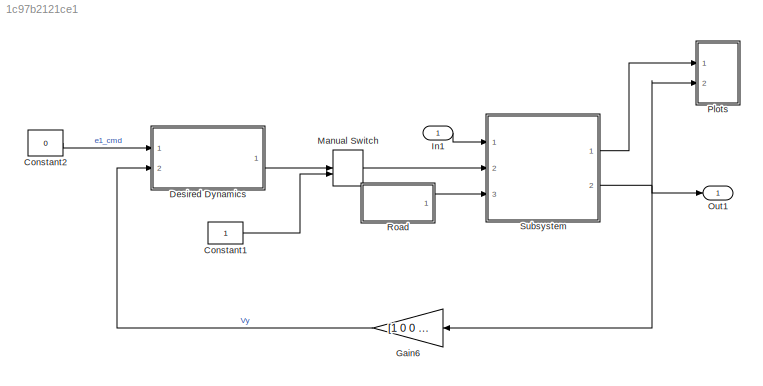
MODEL slx_1c97b2121ce1
KIND model
CONFIG AbsTol = auto
CONFIG EnableMultiTasking = off
CONFIG FixedStep = 0.001
CONFIG MaxStep = auto
CONFIG MinStep = auto
CONFIG RelTol = 1e-3
CONFIG SampleTimeConstraint = Unconstrained
CONFIG Solver = ode3
CONFIG SolverName = ode3
CONFIG StartTime = 0.0
CONFIG StopTime = 25
BLOCK [Constant] Constant1
BLOCK [Constant] Constant2
  Value = 0
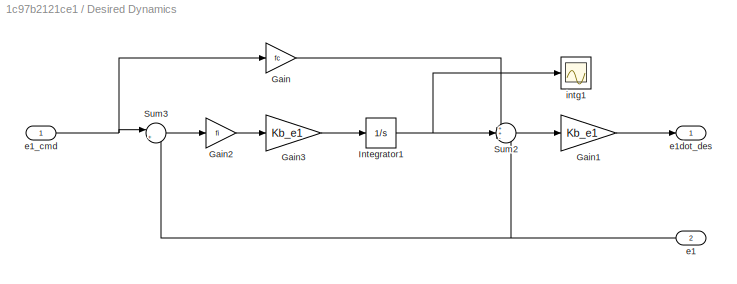
BLOCK [SubSystem] Desired Dynamics
  Ports = [2, 1]
  RequestExecContextInheritance = off
BLOCK [Gain] Desired Dynamics/Gain
  Gain = fc
  OutDataTypeStr = Inherit: Inherit via internal rule
  ParamDataTypeStr = Inherit: Inherit via internal rule
  SaturateOnIntegerOverflow = off
BLOCK [Gain] Desired Dynamics/Gain1
  Gain = Kb_e1
  OutDataTypeStr = Inherit: Inherit via internal rule
  ParamDataTypeStr = Inherit: Inherit via internal rule
  SaturateOnIntegerOverflow = off
BLOCK [Gain] Desired Dynamics/Gain2
  Gain = fi
  OutDataTypeStr = Inherit: Inherit via internal rule
  ParamDataTypeStr = Inherit: Inherit via internal rule
  SaturateOnIntegerOverflow = off
BLOCK [Gain] Desired Dynamics/Gain3
  Gain = Kb_e1
  OutDataTypeStr = Inherit: Inherit via internal rule
  ParamDataTypeStr = Inherit: Inherit via internal rule
  SaturateOnIntegerOverflow = off
BLOCK [Integrator] Desired Dynamics/Integrator1
  Ports = [1, 1]
BLOCK [Sum] Desired Dynamics/Sum2
  IconShape = round
  InputSameDT = off
  Inputs = ++-
  OutDataTypeStr = Inherit: Inherit via internal rule
  Ports = [3, 1]
  SaturateOnIntegerOverflow = off
BLOCK [Sum] Desired Dynamics/Sum3
  IconShape = round
  InputSameDT = off
  Inputs = |+-
  OutDataTypeStr = Inherit: Inherit via internal rule
  Ports = [2, 1]
  SaturateOnIntegerOverflow = off
BLOCK [Inport] Desired Dynamics/e1
  IconDisplay = Port number
  Port = 2
BLOCK [Inport] Desired Dynamics/e1_cmd
  IconDisplay = Port number
BLOCK [Outport] Desired Dynamics/e1dot_des
  IconDisplay = Port number
BLOCK [Scope] Desired Dynamics/intg1
  Floating = off
  NumInputPorts = 1
  Ports = [1]
  ScopeSpecificationString = Simulink.scopes.TimeScopeBlockCfg('CurrentConfiguration', extmgr.ConfigurationSet(extmgr.Configuration('Core','General UI',true),extmgr.Configuration('Core','Source UI',true),extmgr.Configuration('Sources','WiredSimulink',true,'DataLoggingVariableName','ScopeData2'),extmgr.Configuration('Visuals','Time Domain',true,'SerializedDisplays',{struct('MinYLimReal','-0.15092','MaxYLimReal','0.01677','YLab...<+1419ch>
BLOCK [Gain] Gain6
  Gain = [1 0 0 0]
  Multiplication = Matrix(K*u)
  OutDataTypeStr = Inherit: Inherit via internal rule
  ParamDataTypeStr = Inherit: Inherit via internal rule
  SaturateOnIntegerOverflow = off
BLOCK [Inport] In1
  IconDisplay = Port number
BLOCK [ManualSwitch] Manual Switch
BLOCK [Outport] Out1
  IconDisplay = Port number
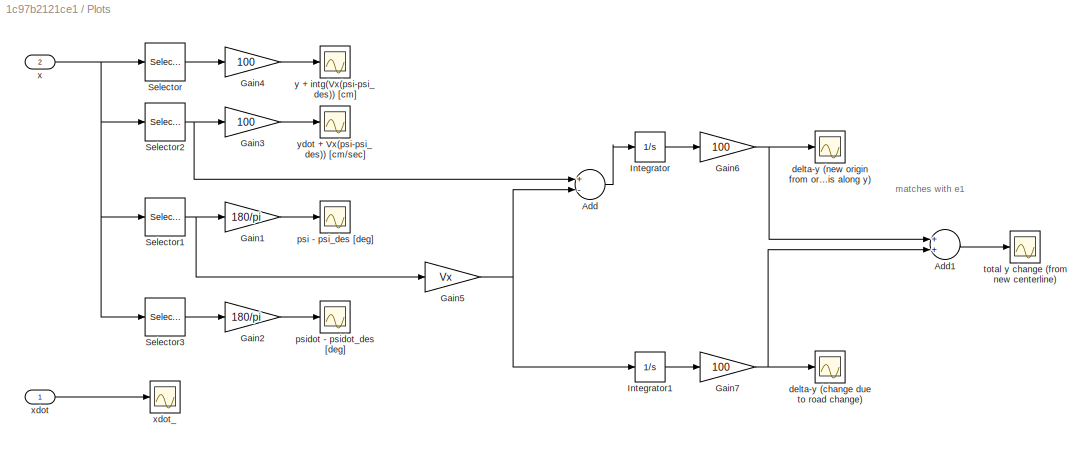
BLOCK [SubSystem] Plots
  Ports = [2]
  RequestExecContextInheritance = off
BLOCK [Sum] Plots/Add
  InputSameDT = off
  Inputs = +-
  OutDataTypeStr = Inherit: Inherit via internal rule
  Ports = [2, 1]
  SaturateOnIntegerOverflow = off
BLOCK [Sum] Plots/Add1
  InputSameDT = off
  OutDataTypeStr = Inherit: Inherit via internal rule
  Ports = [2, 1]
  SaturateOnIntegerOverflow = off
BLOCK [Gain] Plots/Gain1
  Gain = 180/pi
  OutDataTypeStr = Inherit: Inherit via internal rule
  ParamDataTypeStr = Inherit: Inherit via internal rule
  SaturateOnIntegerOverflow = off
BLOCK [Gain] Plots/Gain2
  Gain = 180/pi
  OutDataTypeStr = Inherit: Inherit via internal rule
  ParamDataTypeStr = Inherit: Inherit via internal rule
  SaturateOnIntegerOverflow = off
BLOCK [Gain] Plots/Gain3
  Gain = 100
  OutDataTypeStr = Inherit: Inherit via internal rule
  ParamDataTypeStr = Inherit: Inherit via internal rule
  SaturateOnIntegerOverflow = off
BLOCK [Gain] Plots/Gain4
  Gain = 100
  OutDataTypeStr = Inherit: Inherit via internal rule
  ParamDataTypeStr = Inherit: Inherit via internal rule
  SaturateOnIntegerOverflow = off
BLOCK [Gain] Plots/Gain5
  Gain = Vx
  OutDataTypeStr = Inherit: Inherit via internal rule
  ParamDataTypeStr = Inherit: Inherit via internal rule
  SaturateOnIntegerOverflow = off
BLOCK [Gain] Plots/Gain6
  Gain = 100
  OutDataTypeStr = Inherit: Inherit via internal rule
  ParamDataTypeStr = Inherit: Inherit via internal rule
  SaturateOnIntegerOverflow = off
BLOCK [Gain] Plots/Gain7
  Gain = 100
  OutDataTypeStr = Inherit: Inherit via internal rule
  ParamDataTypeStr = Inherit: Inherit via internal rule
  SaturateOnIntegerOverflow = off
BLOCK [Integrator] Plots/Integrator
  Ports = [1, 1]
BLOCK [Integrator] Plots/Integrator1
  Ports = [1, 1]
BLOCK [Selector] Plots/Selector
  IndexOptions = Index vector (dialog)
  Indices = 1
  InputPortWidth = 4
  OutputSizes = 1
  Ports = [1, 1]
BLOCK [Selector] Plots/Selector1
  IndexOptions = Index vector (dialog)
  Indices = 3
  InputPortWidth = 4
  OutputSizes = 1
  Ports = [1, 1]
BLOCK [Selector] Plots/Selector2
  IndexOptions = Index vector (dialog)
  Indices = 2
  InputPortWidth = 4
  OutputSizes = 1
  Ports = [1, 1]
BLOCK [Selector] Plots/Selector3
  IndexOptions = Index vector (dialog)
  Indices = 4
  InputPortWidth = 4
  OutputSizes = 1
  Ports = [1, 1]
BLOCK [Scope] Plots/delta-y (change due to road change)
  Floating = off
  NumInputPorts = 1
  Ports = [1]
  ScopeSpecificationString = Simulink.scopes.TimeScopeBlockCfg('CurrentConfiguration', extmgr.ConfigurationSet(extmgr.Configuration('Core','General UI',true),extmgr.Configuration('Core','Source UI',true),extmgr.Configuration('Sources','WiredSimulink',true,'DataLoggingVariableName','ScopeData8'),extmgr.Configuration('Visuals','Time Domain',true,'SerializedDisplays',{struct('MinYLimReal','-11.47664','MaxYLimReal','73.01649','YL...<+1444ch>
BLOCK [Scope] Plots/delta-y (new origin from original axis along y)
  Floating = off
  NumInputPorts = 1
  Ports = [1]
  ScopeSpecificationString = Simulink.scopes.TimeScopeBlockCfg('CurrentConfiguration', extmgr.ConfigurationSet(extmgr.Configuration('Core','General UI',true),extmgr.Configuration('Core','Source UI',true),extmgr.Configuration('Sources','WiredSimulink',true,'DataLoggingVariableName','ScopeData7'),extmgr.Configuration('Visuals','Time Domain',true,'SerializedDisplays',{struct('MinYLimReal','-70.58261','MaxYLimReal','11.09408','YL...<+1444ch>
BLOCK [Scope] Plots/psi - psi_des [deg]
  Floating = off
  NumInputPorts = 1
  Ports = [1]
  ScopeSpecificationString = Simulink.scopes.TimeScopeBlockCfg('CurrentConfiguration', extmgr.ConfigurationSet(extmgr.Configuration('Core','General UI',true),extmgr.Configuration('Core','Source UI',true),extmgr.Configuration('Sources','WiredSimulink',true,'DataLoggingVariableName','ScopeData1'),extmgr.Configuration('Visuals','Time Domain',true,'SerializedDisplays',{struct('MinYLimReal','-0.35907','MaxYLimReal','0.75029','YLab...<+1439ch>
BLOCK [Scope] Plots/psidot - psidot_des [deg]
  Floating = off
  NumInputPorts = 1
  Ports = [1]
  ScopeSpecificationString = Simulink.scopes.TimeScopeBlockCfg('CurrentConfiguration', extmgr.ConfigurationSet(extmgr.Configuration('Core','General UI',true),extmgr.Configuration('Core','Source UI',true),extmgr.Configuration('Sources','WiredSimulink',true,'DataLoggingVariableName','ScopeData6'),extmgr.Configuration('Visuals','Time Domain',true,'SerializedDisplays',{struct('MinYLimReal','-2.60728','MaxYLimReal','3.85906','YLab...<+1439ch>
BLOCK [Scope] Plots/total y change (from new centerline)
  Floating = off
  NumInputPorts = 1
  Ports = [1]
  ScopeSpecificationString = Simulink.scopes.TimeScopeBlockCfg('CurrentConfiguration', extmgr.ConfigurationSet(extmgr.Configuration('Core','General UI',true),extmgr.Configuration('Core','Source UI',true),extmgr.Configuration('Sources','WiredSimulink',true,'DataLoggingVariableName','ScopeData9'),extmgr.Configuration('Visuals','Time Domain',true,'SerializedDisplays',{struct('MinYLimReal','-15.47036','MaxYLimReal','13.48539','YL...<+1444ch>
BLOCK [Inport] Plots/x
  IconDisplay = Port number
  Port = 2
BLOCK [Inport] Plots/xdot
  IconDisplay = Port number
BLOCK [Scope] Plots/xdot_
  Floating = off
  NumInputPorts = 1
  Ports = [1]
  ScopeSpecificationString = Simulink.scopes.TimeScopeBlockCfg('CurrentConfiguration', extmgr.ConfigurationSet(extmgr.Configuration('Core','General UI',true),extmgr.Configuration('Core','Source UI',true),extmgr.Configuration('Sources','WiredSimulink',true,'DataLoggingVariableName','ScopeData3'),extmgr.Configuration('Visuals','Time Domain',true,'SerializedDisplays',{struct('MinYLimReal','-4.0849','MaxYLimReal','11.31531','YLab...<+1443ch>
BLOCK [Scope] Plots/y + intg(Vx(psi-psi_des)) [cm]
  Floating = off
  NumInputPorts = 1
  Ports = [1]
  ScopeSpecificationString = Simulink.scopes.TimeScopeBlockCfg('CurrentConfiguration', extmgr.ConfigurationSet(extmgr.Configuration('Core','General UI',true),extmgr.Configuration('Core','Source UI',true),extmgr.Configuration('Sources','WiredSimulink',true,'DataLoggingVariableName','ScopeData2'),extmgr.Configuration('Visuals','Time Domain',true,'SerializedDisplays',{struct('MinYLimReal','-15.47036','MaxYLimReal','13.48539','YL...<+1445ch>
BLOCK [Scope] Plots/ydot + Vx(psi-psi_des)) [cm//sec]
  Floating = off
  NumInputPorts = 1
  Ports = [1]
  ScopeSpecificationString = Simulink.scopes.TimeScopeBlockCfg('CurrentConfiguration', extmgr.ConfigurationSet(extmgr.Configuration('Core','General UI',true),extmgr.Configuration('Core','Source UI',true),extmgr.Configuration('Sources','WiredSimulink',true,'DataLoggingVariableName','ScopeData5'),extmgr.Configuration('Visuals','Time Domain',true,'SerializedDisplays',{struct('MinYLimReal','-28.63308','MaxYLimReal','31.30667','YL...<+1419ch>
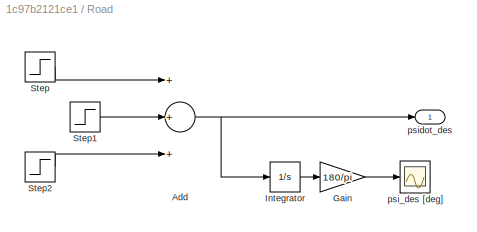
BLOCK [SubSystem] Road
  Ports = [0, 1]
  RequestExecContextInheritance = off
BLOCK [Sum] Road/Add
  InputSameDT = off
  Inputs = +++
  OutDataTypeStr = Inherit: Inherit via internal rule
  Ports = [3, 1]
  SaturateOnIntegerOverflow = off
BLOCK [Gain] Road/Gain
  Gain = 180/pi
  OutDataTypeStr = Inherit: Inherit via internal rule
  ParamDataTypeStr = Inherit: Inherit via internal rule
  SaturateOnIntegerOverflow = off
BLOCK [Integrator] Road/Integrator
  Ports = [1, 1]
BLOCK [Step] Road/Step
  After = 5*pi/180
  SampleTime = 0
  Time = 10
BLOCK [Step] Road/Step1
  After = -5*pi/180
  SampleTime = 0
  Time = 13
BLOCK [Step] Road/Step2
  After = 5*pi/180*0
  SampleTime = 0
  Time = 16
BLOCK [Scope] Road/psi_des [deg]
  Floating = off
  NumInputPorts = 1
  Ports = [1]
  ScopeSpecificationString = Simulink.scopes.TimeScopeBlockCfg('CurrentConfiguration', extmgr.ConfigurationSet(extmgr.Configuration('Core','General UI',true),extmgr.Configuration('Core','Source UI',true),extmgr.Configuration('Sources','WiredSimulink',true,'DataLoggingVariableName','ScopeData4'),extmgr.Configuration('Visuals','Time Domain',true,'SerializedDisplays',{struct('MinYLimReal','-1.875','MaxYLimReal','16.875','YLabelR...<+1411ch>
BLOCK [Outport] Road/psidot_des
  IconDisplay = Port number
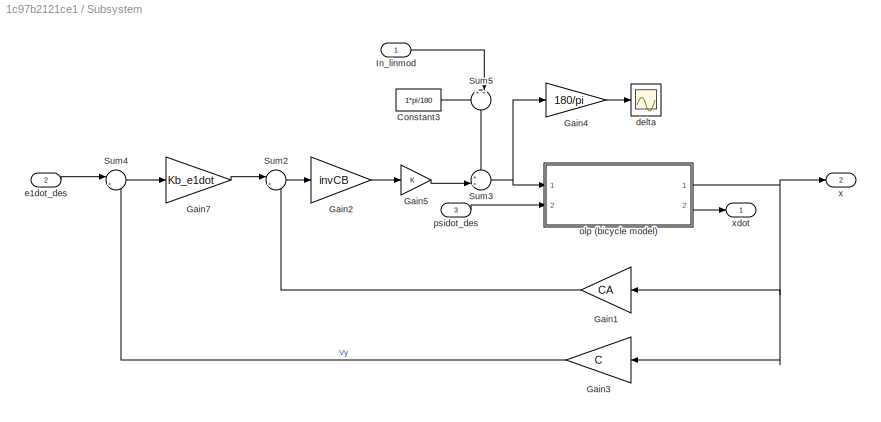
BLOCK [SubSystem] Subsystem
  Ports = [3, 2]
  RequestExecContextInheritance = off
BLOCK [Constant] Subsystem/Constant3
  Value = 1*pi/180
BLOCK [Gain] Subsystem/Gain1
  Gain = CA
  Multiplication = Matrix(K*u)
  OutDataTypeStr = Inherit: Inherit via internal rule
  ParamDataTypeStr = Inherit: Inherit via internal rule
  SaturateOnIntegerOverflow = off
BLOCK [Gain] Subsystem/Gain2
  Gain = invCB
  Multiplication = Matrix(K*u)
  OutDataTypeStr = Inherit: Inherit via internal rule
  ParamDataTypeStr = Inherit: Inherit via internal rule
  SaturateOnIntegerOverflow = off
BLOCK [Gain] Subsystem/Gain3
  Gain = C
  Multiplication = Matrix(K*u)
  OutDataTypeStr = Inherit: Inherit via internal rule
  ParamDataTypeStr = Inherit: Inherit via internal rule
  SaturateOnIntegerOverflow = off
BLOCK [Gain] Subsystem/Gain4
  Gain = 180/pi
  Multiplication = Matrix(K*u)
  OutDataTypeStr = Inherit: Inherit via internal rule
  ParamDataTypeStr = Inherit: Inherit via internal rule
  SaturateOnIntegerOverflow = off
BLOCK [Gain] Subsystem/Gain5
  OutDataTypeStr = Inherit: Inherit via internal rule
  ParamDataTypeStr = Inherit: Inherit via internal rule
  SaturateOnIntegerOverflow = off
BLOCK [Gain] Subsystem/Gain7
  Gain = Kb_e1dot
  OutDataTypeStr = Inherit: Inherit via internal rule
  ParamDataTypeStr = Inherit: Inherit via internal rule
  SaturateOnIntegerOverflow = off
BLOCK [Inport] Subsystem/In_linmod
  IconDisplay = Port number
BLOCK [Sum] Subsystem/Sum2
  IconShape = round
  InputSameDT = off
  Inputs = |+-
  OutDataTypeStr = Inherit: Inherit via internal rule
  Ports = [2, 1]
  SaturateOnIntegerOverflow = off
BLOCK [Sum] Subsystem/Sum3
  IconShape = round
  InputSameDT = off
  Inputs = ++|
  OutDataTypeStr = Inherit: Inherit via internal rule
  Ports = [2, 1]
  SaturateOnIntegerOverflow = off
BLOCK [Sum] Subsystem/Sum4
  IconShape = round
  InputSameDT = off
  Inputs = |+-
  OutDataTypeStr = Inherit: Inherit via internal rule
  Ports = [2, 1]
  SaturateOnIntegerOverflow = off
BLOCK [Sum] Subsystem/Sum5
  IconShape = round
  InputSameDT = off
  Inputs = ++|
  OutDataTypeStr = Inherit: Inherit via internal rule
  Ports = [2, 1]
  SaturateOnIntegerOverflow = off
BLOCK [Scope] Subsystem/delta
  Floating = off
  NumInputPorts = 1
  Ports = [1]
  ScopeSpecificationString = Simulink.scopes.TimeScopeBlockCfg('CurrentConfiguration', extmgr.ConfigurationSet(extmgr.Configuration('Core','General UI',true),extmgr.Configuration('Core','Source UI',true),extmgr.Configuration('Sources','WiredSimulink',true,'DataLoggingVariableName','ScopeData3'),extmgr.Configuration('Visuals','Time Domain',true,'SerializedDisplays',{struct('MinYLimReal','-0.30382','MaxYLimReal','2.76099','YLab...<+1393ch>
BLOCK [Inport] Subsystem/e1dot_des
  IconDisplay = Port number
  Port = 2
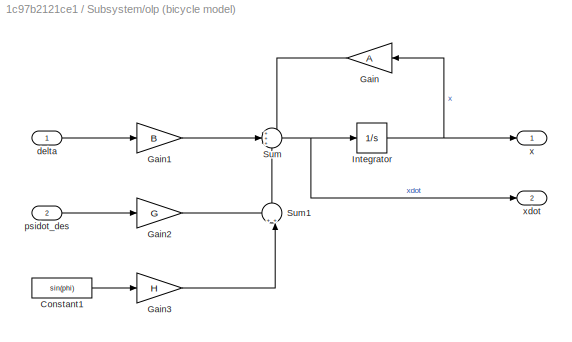
BLOCK [SubSystem] Subsystem/olp (bicycle model)
  Ports = [2, 2]
  RequestExecContextInheritance = off
BLOCK [Constant] Subsystem/olp (bicycle model)/Constant1
  Value = sin(phi)
BLOCK [Gain] Subsystem/olp (bicycle model)/Gain
  Gain = A
  Multiplication = Matrix(K*u)
  OutDataTypeStr = Inherit: Inherit via internal rule
  ParamDataTypeStr = Inherit: Inherit via internal rule
  SaturateOnIntegerOverflow = off
BLOCK [Gain] Subsystem/olp (bicycle model)/Gain1
  Gain = B
  Multiplication = Matrix(K*u)
  OutDataTypeStr = Inherit: Inherit via internal rule
  ParamDataTypeStr = Inherit: Inherit via internal rule
  SaturateOnIntegerOverflow = off
BLOCK [Gain] Subsystem/olp (bicycle model)/Gain2
  Gain = G
  Multiplication = Matrix(K*u)
  OutDataTypeStr = Inherit: Inherit via internal rule
  ParamDataTypeStr = Inherit: Inherit via internal rule
  SaturateOnIntegerOverflow = off
BLOCK [Gain] Subsystem/olp (bicycle model)/Gain3
  Gain = H
  Multiplication = Matrix(K*u)
  OutDataTypeStr = Inherit: Inherit via internal rule
  ParamDataTypeStr = Inherit: Inherit via internal rule
  SaturateOnIntegerOverflow = off
BLOCK [Integrator] Subsystem/olp (bicycle model)/Integrator
  InitialCondition = x0
  Ports = [1, 1]
BLOCK [Sum] Subsystem/olp (bicycle model)/Sum
  IconShape = round
  InputSameDT = off
  Inputs = +++
  OutDataTypeStr = Inherit: Inherit via internal rule
  Ports = [3, 1]
  SaturateOnIntegerOverflow = off
BLOCK [Sum] Subsystem/olp (bicycle model)/Sum1
  IconShape = round
  InputSameDT = off
  Inputs = ++|
  OutDataTypeStr = Inherit: Inherit via internal rule
  Ports = [2, 1]
  SaturateOnIntegerOverflow = off
BLOCK [Inport] Subsystem/olp (bicycle model)/delta
  IconDisplay = Port number
BLOCK [Inport] Subsystem/olp (bicycle model)/psidot_des
  IconDisplay = Port number
  Port = 2
BLOCK [Outport] Subsystem/olp (bicycle model)/x
  IconDisplay = Port number
BLOCK [Outport] Subsystem/olp (bicycle model)/xdot
  IconDisplay = Port number
  Port = 2
BLOCK [Inport] Subsystem/psidot_des
  IconDisplay = Port number
  Port = 3
BLOCK [Outport] Subsystem/x
  IconDisplay = Port number
  Port = 2
BLOCK [Outport] Subsystem/xdot
  IconDisplay = Port number
ANNOTATION Plots: matches with e1
LINE Constant1:1 -> Manual Switch:2
LINE Constant2:1 -> Desired Dynamics:1
LINE Desired Dynamics/Gain1:1 -> Desired Dynamics/e1dot_des:1
LINE Desired Dynamics/Gain2:1 -> Desired Dynamics/Gain3:1
LINE Desired Dynamics/Gain3:1 -> Desired Dynamics/Integrator1:1
LINE Desired Dynamics/Gain:1 -> Desired Dynamics/Sum2:1
NET Desired Dynamics/Integrator1:1 -> Desired Dynamics/Sum2:2, Desired Dynamics/intg1:1
LINE Desired Dynamics/Sum2:1 -> Desired Dynamics/Gain1:1
LINE Desired Dynamics/Sum3:1 -> Desired Dynamics/Gain2:1
NET Desired Dynamics/e1:1 -> Desired Dynamics/Sum2:3, Desired Dynamics/Sum3:2
NET Desired Dynamics/e1_cmd:1 -> Desired Dynamics/Gain:1, Desired Dynamics/Sum3:1
LINE Desired Dynamics:1 -> Manual Switch:1
LINE Gain6:1 -> Desired Dynamics:2
LINE In1:1 -> Subsystem:1
LINE Manual Switch:1 -> Subsystem:2
LINE Plots/Add1:1 -> Plots/total y change (from new centerline):1
LINE Plots/Add:1 -> Plots/Integrator:1
LINE Plots/Gain1:1 -> Plots/psi - psi_des [deg]:1
LINE Plots/Gain2:1 -> Plots/psidot - psidot_des [deg]:1
LINE Plots/Gain3:1 -> Plots/ydot + Vx(psi-psi_des)) [cm//sec]:1
LINE Plots/Gain4:1 -> Plots/y + intg(Vx(psi-psi_des)) [cm]:1
NET Plots/Gain5:1 -> Plots/Add:2, Plots/Integrator1:1
NET Plots/Gain6:1 -> Plots/Add1:1, Plots/delta-y (new origin from original axis along y):1
NET Plots/Gain7:1 -> Plots/Add1:2, Plots/delta-y (change due to road change):1
LINE Plots/Integrator1:1 -> Plots/Gain7:1
LINE Plots/Integrator:1 -> Plots/Gain6:1
NET Plots/Selector1:1 -> Plots/Gain1:1, Plots/Gain5:1
NET Plots/Selector2:1 -> Plots/Add:1, Plots/Gain3:1
LINE Plots/Selector3:1 -> Plots/Gain2:1
LINE Plots/Selector:1 -> Plots/Gain4:1
NET Plots/x:1 -> Plots/Selector1:1, Plots/Selector2:1, Plots/Selector3:1, Plots/Selector:1
LINE Plots/xdot:1 -> Plots/xdot_:1
NET Road/Add:1 -> Road/Integrator:1, Road/psidot_des:1
LINE Road/Gain:1 -> Road/psi_des [deg]:1
LINE Road/Integrator:1 -> Road/Gain:1
LINE Road/Step1:1 -> Road/Add:2
LINE Road/Step2:1 -> Road/Add:3
LINE Road/Step:1 -> Road/Add:1
LINE Road:1 -> Subsystem:3
LINE Subsystem/Constant3:1 -> Subsystem/Sum5:1
LINE Subsystem/Gain1:1 -> Subsystem/Sum2:2
LINE Subsystem/Gain2:1 -> Subsystem/Gain5:1
LINE Subsystem/Gain3:1 -> Subsystem/Sum4:2
LINE Subsystem/Gain4:1 -> Subsystem/delta:1
LINE Subsystem/Gain5:1 -> Subsystem/Sum3:2
LINE Subsystem/Gain7:1 -> Subsystem/Sum2:1
LINE Subsystem/In_linmod:1 -> Subsystem/Sum5:2
LINE Subsystem/Sum2:1 -> Subsystem/Gain2:1
NET Subsystem/Sum3:1 -> Subsystem/Gain4:1, Subsystem/olp (bicycle model):1
LINE Subsystem/Sum4:1 -> Subsystem/Gain7:1
LINE Subsystem/Sum5:1 -> Subsystem/Sum3:1
LINE Subsystem/e1dot_des:1 -> Subsystem/Sum4:1
LINE Subsystem/olp (bicycle model)/Constant1:1 -> Subsystem/olp (bicycle model)/Gain3:1
LINE Subsystem/olp (bicycle model)/Gain1:1 -> Subsystem/olp (bicycle model)/Sum:2
LINE Subsystem/olp (bicycle model)/Gain2:1 -> Subsystem/olp (bicycle model)/Sum1:1
LINE Subsystem/olp (bicycle model)/Gain3:1 -> Subsystem/olp (bicycle model)/Sum1:2
LINE Subsystem/olp (bicycle model)/Gain:1 -> Subsystem/olp (bicycle model)/Sum:1
NET Subsystem/olp (bicycle model)/Integrator:1 -> Subsystem/olp (bicycle model)/Gain:1, Subsystem/olp (bicycle model)/x:1
LINE Subsystem/olp (bicycle model)/Sum1:1 -> Subsystem/olp (bicycle model)/Sum:3
NET Subsystem/olp (bicycle model)/Sum:1 -> Subsystem/olp (bicycle model)/Integrator:1, Subsystem/olp (bicycle model)/xdot:1
LINE Subsystem/olp (bicycle model)/delta:1 -> Subsystem/olp (bicycle model)/Gain1:1
LINE Subsystem/olp (bicycle model)/psidot_des:1 -> Subsystem/olp (bicycle model)/Gain2:1
NET Subsystem/olp (bicycle model):1 -> Subsystem/Gain1:1, Subsystem/Gain3:1, Subsystem/x:1
LINE Subsystem/olp (bicycle model):2 -> Subsystem/xdot:1
LINE Subsystem/psidot_des:1 -> Subsystem/olp (bicycle model):2
LINE Subsystem:1 -> Plots:1
NET Subsystem:2 -> Gain6:1, Out1:1, Plots:2
note: NET lines group one-source signal fan-out (src -> all destinations, sorted); 1:1 wires keep LINE
